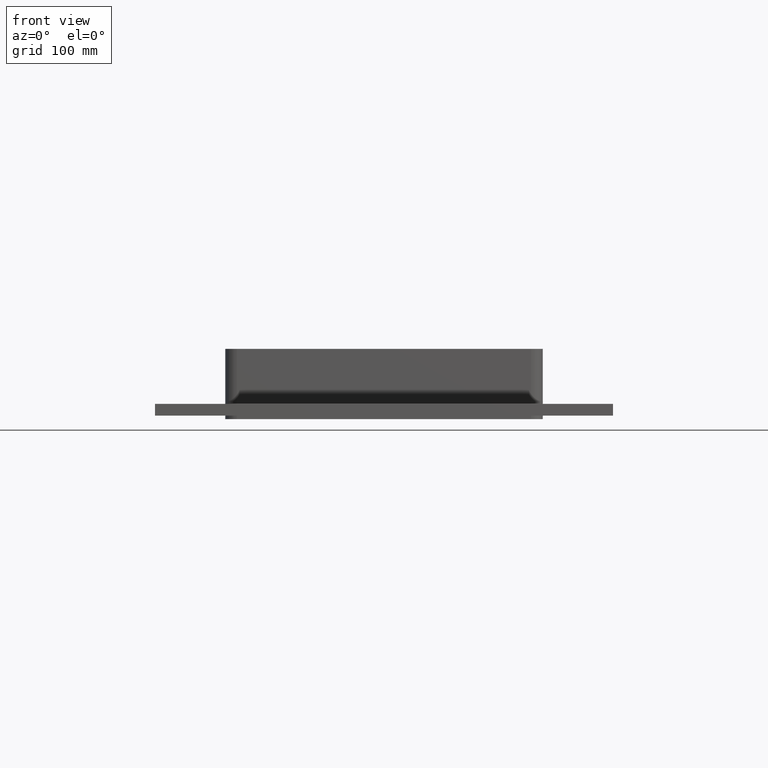
[diagram: clean part render]
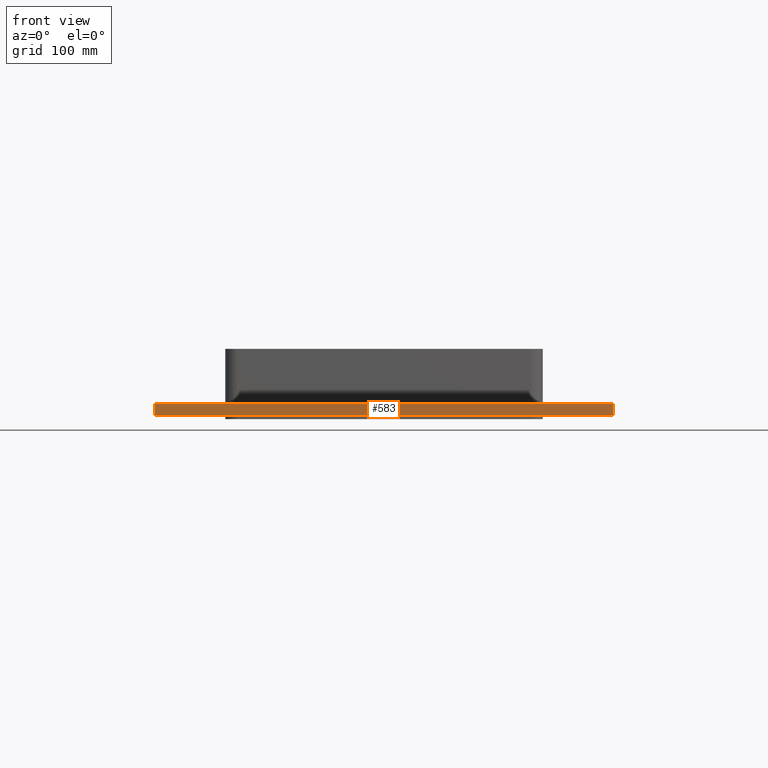
[diagram: same view with one face highlighted and labeled with its STEP entity id]
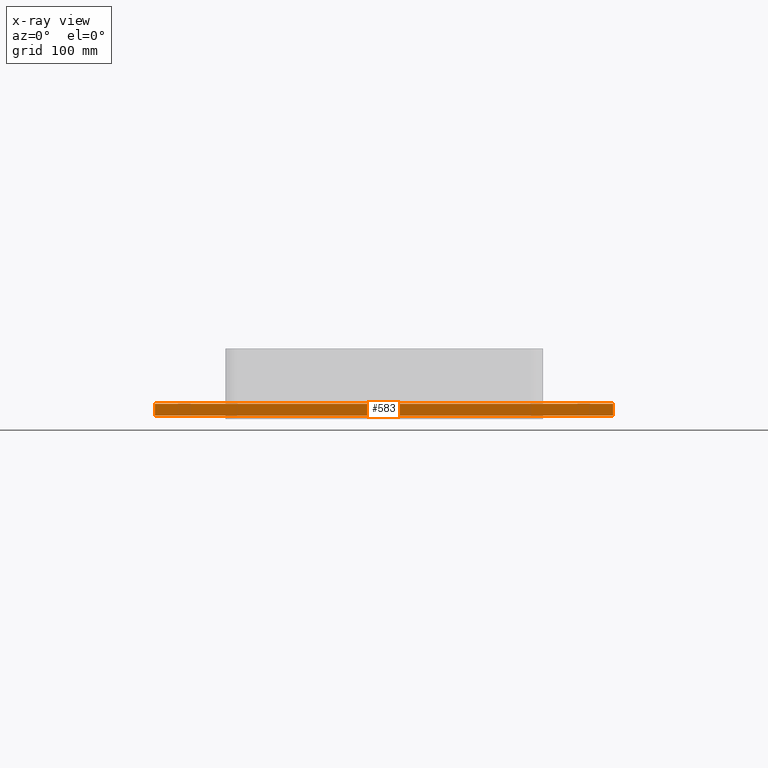
[diagram: x-ray of the same camera — body ghosted, the highlighted face saturated]
A machine part, front view. The second image highlights one B-rep face of the part: STEP entity #583.
The next image is the same camera in x-ray: the body ghosted, the highlighted face saturated — about 0% of this face is hidden behind the body in this view.
In plain terms, the highlighted planar face has unit normal (0, -1, 0).
Its self-contained STEP definition (entity closure, byte-faithful):
#465=CARTESIAN_POINT('',(-195.49999999999997,-241.50000000000006,-27.0));
#466=VERTEX_POINT('',#465);
#475=CARTESIAN_POINT('',(-195.49999999999997,-241.50000000000006,-17.0));
#476=VERTEX_POINT('',#475);
#477=CARTESIAN_POINT('',(-195.49999999999997,-241.50000000000006,-27.0));
#478=DIRECTION('',(0.0,0.0,1.0));
#479=VECTOR('',#478,10.0);
#480=LINE('',#477,#479);
#481=EDGE_CURVE('',#466,#476,#480,.T.);
#536=CARTESIAN_POINT('',(195.50000000000006,-241.5,-27.0));
#537=VERTEX_POINT('',#536);
#545=CARTESIAN_POINT('',(195.50000000000006,-241.5,-17.0));
#546=VERTEX_POINT('',#545);
#553=CARTESIAN_POINT('',(195.50000000000006,-241.5,-27.0));
#554=DIRECTION('',(0.0,0.0,1.0));
#555=VECTOR('',#554,10.0);
#556=LINE('',#553,#555);
#557=EDGE_CURVE('',#537,#546,#556,.T.);
#562=CARTESIAN_POINT('',(-195.49999999999997,-241.50000000000006,-27.0));
#563=DIRECTION('',(0.0,-1.0,0.0));
#564=DIRECTION('',(1.0,0.0,0.0));
#565=AXIS2_PLACEMENT_3D('',#562,#563,#564);
#566=PLANE('',#565);
#567=CARTESIAN_POINT('',(195.50000000000006,-241.5,-27.0));
#568=DIRECTION('',(-1.0,0.0,0.0));
#569=VECTOR('',#568,391.0);
#570=LINE('',#567,#569);
#571=EDGE_CURVE('',#537,#466,#570,.T.);
#572=ORIENTED_EDGE('',*,*,#571,.F.);
#573=ORIENTED_EDGE('',*,*,#557,.T.);
#574=CARTESIAN_POINT('',(-195.49999999999994,-241.50000000000009,-17.0));
#575=DIRECTION('',(1.0,0.0,0.0));
#576=VECTOR('',#575,391.0);
#577=LINE('',#574,#576);
#578=EDGE_CURVE('',#476,#546,#577,.T.);
#579=ORIENTED_EDGE('',*,*,#578,.F.);
#580=ORIENTED_EDGE('',*,*,#481,.F.);
#581=EDGE_LOOP('',(#572,#573,#579,#580));
#582=FACE_OUTER_BOUND('',#581,.T.);
#583=ADVANCED_FACE('',(#582),#566,.T.);